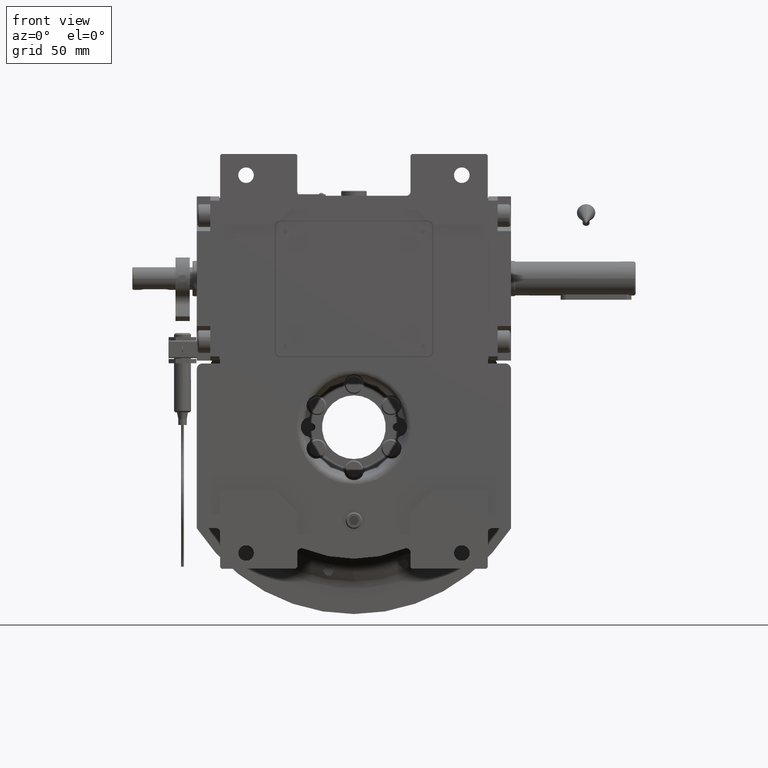
[diagram: clean part render]
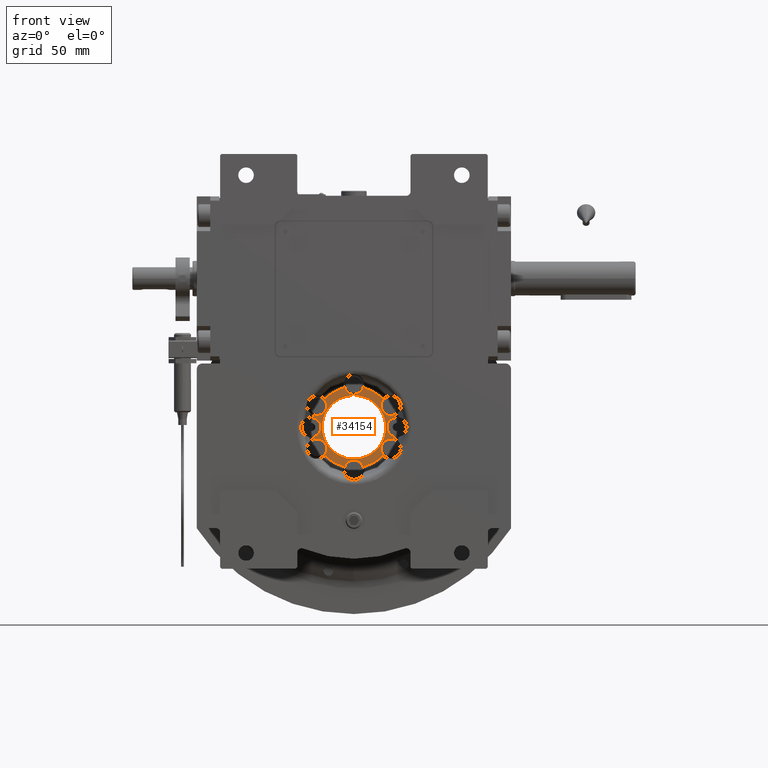
[diagram: same view with one face highlighted and labeled with its STEP entity id]
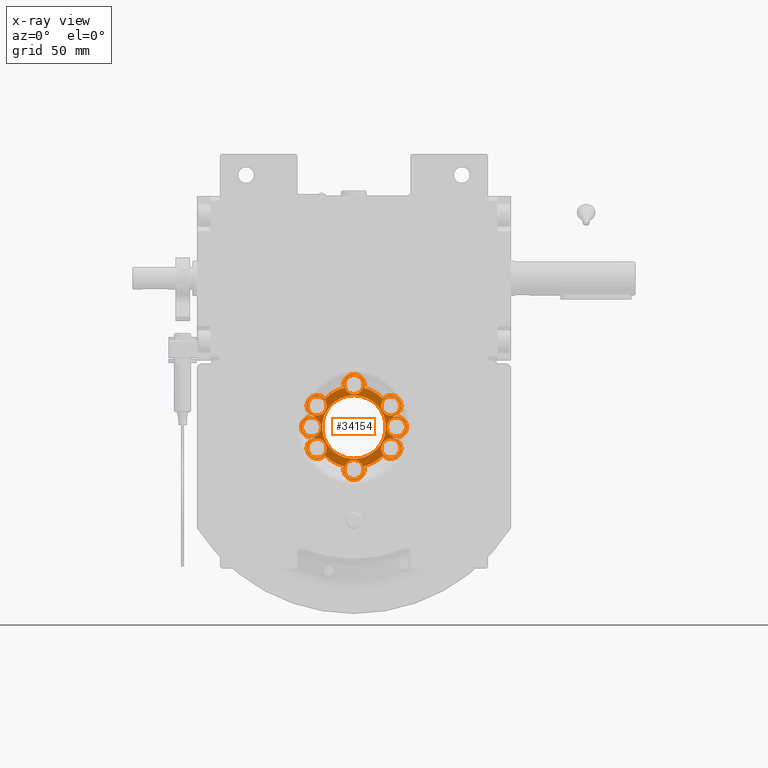
[diagram: x-ray of the same camera — body ghosted, the highlighted face saturated]
A machine part, front view. The second image highlights one B-rep face of the part: STEP entity #34154.
The next image is the same camera in x-ray: the body ghosted, the highlighted face saturated — about 1% of this face is hidden behind the body in this view.
In plain terms, the highlighted planar face has unit normal (0, -1, 0).
Its self-contained STEP definition (entity closure, byte-faithful):
#95 = ORIENTED_EDGE ( 'NONE', *, *, #12396, .T. ) ;
#175 = DIRECTION ( 'NONE',  ( -0.2495764111921504880, 0.000000000000000000, 0.9683551078898930964 ) ) ;
#772 = AXIS2_PLACEMENT_3D ( 'NONE', #43629, #66810, #59610 ) ;
#828 = EDGE_CURVE ( 'NONE', #2561, #31784, #61180, .T. ) ;
#923 = CIRCLE ( 'NONE', #57994, 7.500000000000002665 ) ;
#1090 = VERTEX_POINT ( 'NONE', #12328 ) ;
#1210 = EDGE_CURVE ( 'NONE', #31842, #29316, #15073, .T. ) ;
#1431 = CIRCLE ( 'NONE', #53616, 6.749999999999999112 ) ;
#1742 = AXIS2_PLACEMENT_3D ( 'NONE', #8483, #19494, #20617 ) ;
#1777 = DIRECTION ( 'NONE',  ( 0.000000000000000000, 1.836909530733564901E-16, 1.000000000000000000 ) ) ;
#2049 = ORIENTED_EDGE ( 'NONE', *, *, #50037, .T. ) ;
#2207 = CIRCLE ( 'NONE', #26444, 6.750000000000002665 ) ;
#2255 = ORIENTED_EDGE ( 'NONE', *, *, #47612, .T. ) ;
#2471 = VERTEX_POINT ( 'NONE', #60182 ) ;
#2561 = VERTEX_POINT ( 'NONE', #66244 ) ;
#2664 = EDGE_CURVE ( 'NONE', #71625, #13725, #18701, .T. ) ;
#2750 = CARTESIAN_POINT ( 'NONE',  ( -25.98076211353314946, 49.50000000000000000, -15.00000000000000000 ) ) ;
#3079 = ORIENTED_EDGE ( 'NONE', *, *, #42048, .T. ) ;
#3506 = CARTESIAN_POINT ( 'NONE',  ( -27.70874882886609925, 49.50000000000000000, 7.141440195841309624 ) ) ;
#3573 = ORIENTED_EDGE ( 'NONE', *, *, #32032, .T. ) ;
#3580 = ORIENTED_EDGE ( 'NONE', *, *, #11729, .F. ) ;
#3894 = DIRECTION ( 'NONE',  ( 1.000000000000000000, 0.000000000000000000, -4.921026175302210358E-15 ) ) ;
#3923 = DIRECTION ( 'NONE',  ( 0.000000000000000000, -1.000000000000000000, 0.000000000000000000 ) ) ;
#3986 = VERTEX_POINT ( 'NONE', #18100 ) ;
#4153 = CARTESIAN_POINT ( 'NONE',  ( -6.217248937900877889E-14, 49.50000000000000000, -8.881784197001248537E-14 ) ) ;
#4264 = CARTESIAN_POINT ( 'NONE',  ( -3.673940397442059967E-15, 49.50000000000000000, 22.50000000000000000 ) ) ;
#4913 = DIRECTION ( 'NONE',  ( -0.7138319177209940802, 0.000000000000000000, -0.7003170662226988474 ) ) ;
#5002 = EDGE_CURVE ( 'NONE', #72219, #10154, #5605, .T. ) ;
#5119 = DIRECTION ( 'NONE',  ( -0.2115251169690453847, 0.000000000000000000, 0.9773725619697085643 ) ) ;
#5138 = CARTESIAN_POINT ( 'NONE',  ( 5.684341886080798963E-14, 49.50000000000000000, -7.815970093361099520E-14 ) ) ;
#5605 = CIRCLE ( 'NONE', #772, 6.750000000000000000 ) ;
#5855 = DIRECTION ( 'NONE',  ( -0.7406669091431250518, 0.000000000000000000, -0.6718724058185229220 ) ) ;
#5887 = DIRECTION ( 'NONE',  ( 1.052655904829774050E-15, -1.000000000000000000, 1.063480603965749875E-15 ) ) ;
#6006 = PLANE ( 'NONE',  #20629 ) ;
#6007 = CARTESIAN_POINT ( 'NONE',  ( 6.217248937900879782E-15, 49.50000000000000000, 30.00000000000000000 ) ) ;
#6199 = CARTESIAN_POINT ( 'NONE',  ( -37.50000000000000000, 49.50000000000000000, 3.517587386798749700E-14 ) ) ;
#6269 = ORIENTED_EDGE ( 'NONE', *, *, #19301, .T. ) ;
#7253 = CARTESIAN_POINT ( 'NONE',  ( -6.549427666868720878E-11, 49.50000000000000000, -1.737010535407535240E-11 ) ) ;
#7298 = CARTESIAN_POINT ( 'NONE',  ( -36.75000000000000000, 49.50000000000000000, 1.367857847237842054E-14 ) ) ;
#7485 = DIRECTION ( 'NONE',  ( 0.9521920261121733509, 0.000000000000000000, -0.3055001561511784258 ) ) ;
#7563 = EDGE_CURVE ( 'NONE', #33799, #36087, #61667, .T. ) ;
#7821 = AXIS2_PLACEMENT_3D ( 'NONE', #4153, #67998, #4913 ) ;
#7988 = DIRECTION ( 'NONE',  ( 0.000000000000000000, -1.000000000000000000, 0.000000000000000000 ) ) ;
#8483 = CARTESIAN_POINT ( 'NONE',  ( 0.000000000000000000, 49.50000000000000000, 3.552713678800499352E-15 ) ) ;
#8504 = CIRCLE ( 'NONE', #70363, 22.50000000000000000 ) ;
#8998 = VERTEX_POINT ( 'NONE', #19040 ) ;
#9854 = ORIENTED_EDGE ( 'NONE', *, *, #56046, .F. ) ;
#9982 = CARTESIAN_POINT ( 'NONE',  ( 32.73076211353314591, 49.50000000000000000, 15.00000000000000000 ) ) ;
#10011 = ORIENTED_EDGE ( 'NONE', *, *, #17762, .T. ) ;
#10085 = VERTEX_POINT ( 'NONE', #7298 ) ;
#10154 = VERTEX_POINT ( 'NONE', #25134 ) ;
#10324 = VERTEX_POINT ( 'NONE', #32710 ) ;
#10391 = ORIENTED_EDGE ( 'NONE', *, *, #36341, .F. ) ;
#10488 = VERTEX_POINT ( 'NONE', #56647 ) ;
#10562 = CIRCLE ( 'NONE', #29957, 6.749999999999999112 ) ;
#10626 = CARTESIAN_POINT ( 'NONE',  ( -32.73076211353314591, 49.50000000000000000, 15.00000000000000000 ) ) ;
#10730 = CARTESIAN_POINT ( 'NONE',  ( -6.750000000000000000, 49.50000000000000000, 30.00000000000000000 ) ) ;
#10832 = CARTESIAN_POINT ( 'NONE',  ( -25.98076211353314946, 49.50000000000000000, -15.00000000000000000 ) ) ;
#10846 = EDGE_CURVE ( 'NONE', #34928, #63607, #19502, .T. ) ;
#11029 = EDGE_CURVE ( 'NONE', #13900, #8998, #19684, .T. ) ;
#11113 = CARTESIAN_POINT ( 'NONE',  ( 8.881784197001250351E-16, 49.50000000000000000, -30.00000000000000000 ) ) ;
#11633 = AXIS2_PLACEMENT_3D ( 'NONE', #28217, #51391, #45699 ) ;
#11720 = CIRCLE ( 'NONE', #40857, 7.499999999999997335 ) ;
#11729 = EDGE_CURVE ( 'NONE', #1090, #53224, #59942, .T. ) ;
#11902 = DIRECTION ( 'NONE',  ( -0.9634083289131539773, 0.000000000000000000, 0.2680380416671560018 ) ) ;
#12172 = ORIENTED_EDGE ( 'NONE', *, *, #66493, .T. ) ;
#12328 = CARTESIAN_POINT ( 'NONE',  ( 23.25000000000000000, 49.50000000000000000, 5.684972695077299758E-15 ) ) ;
#12396 = EDGE_CURVE ( 'NONE', #31784, #30095, #63636, .T. ) ;
#12438 = FACE_BOUND ( 'NONE', #16525, .T. ) ;
#12598 = DIRECTION ( 'NONE',  ( 0.000000000000000000, -1.000000000000000000, 0.000000000000000000 ) ) ;
#12618 = EDGE_CURVE ( 'NONE', #62939, #65410, #74594, .T. ) ;
#12813 = FACE_BOUND ( 'NONE', #29703, .T. ) ;
#12919 = DIRECTION ( 'NONE',  ( 1.052655904829776023E-15, -1.000000000000000000, 1.063480603965743958E-15 ) ) ;
#13033 = DIRECTION ( 'NONE',  ( 0.000000000000000000, -1.000000000000000000, 0.000000000000000000 ) ) ;
#13042 = VERTEX_POINT ( 'NONE', #62580 ) ;
#13234 = ORIENTED_EDGE ( 'NONE', *, *, #37246, .T. ) ;
#13589 = ORIENTED_EDGE ( 'NONE', *, *, #68331, .T. ) ;
#13609 = DIRECTION ( 'NONE',  ( 0.7406669091431267171, 0.000000000000000000, 0.6718724058185209236 ) ) ;
#13725 = VERTEX_POINT ( 'NONE', #9982 ) ;
#13819 = CARTESIAN_POINT ( 'NONE',  ( 6.750000000000000000, 49.50000000000000000, -30.00000000000000000 ) ) ;
#13900 = VERTEX_POINT ( 'NONE', #59959 ) ;
#14118 = CARTESIAN_POINT ( 'NONE',  ( 25.98076211353314946, 49.50000000000000000, -15.00000000000000000 ) ) ;
#14377 = AXIS2_PLACEMENT_3D ( 'NONE', #60120, #13033, #35830 ) ;
#14394 = CARTESIAN_POINT ( 'NONE',  ( 7.141440195841290084, 49.50000000000000000, -27.70874882886609925 ) ) ;
#14540 = DIRECTION ( 'NONE',  ( -0.2115251169690453847, 0.000000000000000000, 0.9773725619697085643 ) ) ;
#14675 = DIRECTION ( 'NONE',  ( 0.000000000000000000, -1.000000000000000000, 0.000000000000000000 ) ) ;
#14782 = ORIENTED_EDGE ( 'NONE', *, *, #828, .T. ) ;
#14814 = DIRECTION ( 'NONE',  ( -0.9521920261121707973, 0.000000000000000000, 0.3055001561511856423 ) ) ;
#15073 = CIRCLE ( 'NONE', #1742, 22.50000000000000000 ) ;
#15100 = CIRCLE ( 'NONE', #45488, 28.61424347655976064 ) ;
#15114 = EDGE_CURVE ( 'NONE', #10488, #10085, #74392, .T. ) ;
#15326 = CARTESIAN_POINT ( 'NONE',  ( -20.42576029495970147, 49.50000000000000000, 20.03904304363894795 ) ) ;
#15393 = CARTESIAN_POINT ( 'NONE',  ( -7.141440195841279426, 49.50000000000000000, -27.70874882886609925 ) ) ;
#15714 = CARTESIAN_POINT ( 'NONE',  ( -2.664535259100374514E-15, 49.50000000000000000, -30.00000000000000000 ) ) ;
#16375 = CIRCLE ( 'NONE', #62474, 7.500000000000000888 ) ;
#16492 = EDGE_CURVE ( 'NONE', #34989, #20798, #10562, .T. ) ;
#16525 = EDGE_LOOP ( 'NONE', ( #10391, #39692 ) ) ;
#16721 = ORIENTED_EDGE ( 'NONE', *, *, #11029, .T. ) ;
#17448 = CARTESIAN_POINT ( 'NONE',  ( 19.23076211353314946, 49.50000000000000000, 15.00000000000000000 ) ) ;
#17551 = DIRECTION ( 'NONE',  ( 1.000000000000000000, 0.000000000000000000, -2.055968564120660318E-15 ) ) ;
#17740 = EDGE_LOOP ( 'NONE', ( #41887, #45948 ) ) ;
#17750 = FACE_BOUND ( 'NONE', #52357, .T. ) ;
#17762 = EDGE_CURVE ( 'NONE', #2471, #3986, #69893, .T. ) ;
#17949 = CARTESIAN_POINT ( 'NONE',  ( 30.00000000000000000, 49.50000000000000000, 1.154631945610162013E-14 ) ) ;
#18029 = CARTESIAN_POINT ( 'NONE',  ( 6.750000000000000000, 49.50000000000000000, 30.00000000000000000 ) ) ;
#18100 = CARTESIAN_POINT ( 'NONE',  ( 27.70874882886609925, 49.50000000000000000, -7.141440195841269656 ) ) ;
#18378 = CARTESIAN_POINT ( 'NONE',  ( 1.421085471520200056E-14, 49.50000000000000000, -3.197442310920450205E-14 ) ) ;
#18476 = CIRCLE ( 'NONE', #60950, 7.500000000000002665 ) ;
#18501 = CARTESIAN_POINT ( 'NONE',  ( 25.98076211353314946, 49.50000000000000000, 15.00000000000000000 ) ) ;
#18701 = CIRCLE ( 'NONE', #55111, 6.749999999999999112 ) ;
#18958 = CARTESIAN_POINT ( 'NONE',  ( -27.56720049080099599, 49.50000000000000000, 7.669705785227219685 ) ) ;
#19005 = DIRECTION ( 'NONE',  ( 0.9683551078898888775, 0.000000000000000000, 0.2495764111921669470 ) ) ;
#19040 = CARTESIAN_POINT ( 'NONE',  ( -27.56720049080099599, 49.50000000000000000, -7.669705785227169947 ) ) ;
#19280 = DIRECTION ( 'NONE',  ( -1.000000000000000000, 0.000000000000000000, -2.569960705150824412E-16 ) ) ;
#19301 = EDGE_CURVE ( 'NONE', #63607, #43975, #23765, .T. ) ;
#19401 = EDGE_CURVE ( 'NONE', #53224, #1090, #22561, .T. ) ;
#19494 = DIRECTION ( 'NONE',  ( 0.000000000000000000, -1.000000000000000000, 0.000000000000000000 ) ) ;
#19502 = CIRCLE ( 'NONE', #32857, 7.499999999999997335 ) ;
#19684 = CIRCLE ( 'NONE', #51270, 28.61424347655751177 ) ;
#19725 = EDGE_CURVE ( 'NONE', #13042, #2471, #16375, .T. ) ;
#19772 = CARTESIAN_POINT ( 'NONE',  ( -1.776356839400249676E-15, 49.50000000000000000, 3.552713678800499352E-15 ) ) ;
#19773 = DIRECTION ( 'NONE',  ( -1.000000000000000000, 0.000000000000000000, -2.569960705150825398E-15 ) ) ;
#19834 = ORIENTED_EDGE ( 'NONE', *, *, #16492, .F. ) ;
#20074 = EDGE_CURVE ( 'NONE', #10324, #34928, #11720, .T. ) ;
#20288 = CARTESIAN_POINT ( 'NONE',  ( -2.664535259100374514E-15, 49.50000000000000000, -30.00000000000000000 ) ) ;
#20617 = DIRECTION ( 'NONE',  ( 1.224646799147351728E-16, 0.000000000000000000, -1.000000000000000000 ) ) ;
#20629 = AXIS2_PLACEMENT_3D ( 'NONE', #41318, #58419, #1777 ) ;
#20798 = VERTEX_POINT ( 'NONE', #29583 ) ;
#21282 = CIRCLE ( 'NONE', #24922, 6.749999999999999112 ) ;
#21721 = ORIENTED_EDGE ( 'NONE', *, *, #53554, .T. ) ;
#21815 = EDGE_CURVE ( 'NONE', #38033, #39357, #72244, .T. ) ;
#22132 = DIRECTION ( 'NONE',  ( 0.000000000000000000, -1.000000000000000000, 0.000000000000000000 ) ) ;
#22238 = CARTESIAN_POINT ( 'NONE',  ( 6.331291046990370121E-11, 49.50000000000000000, 1.678124306181415322E-11 ) ) ;
#22387 = AXIS2_PLACEMENT_3D ( 'NONE', #17949, #25051, #71428 ) ;
#22510 = DIRECTION ( 'NONE',  ( 0.000000000000000000, -1.000000000000000000, 0.000000000000000000 ) ) ;
#22561 = CIRCLE ( 'NONE', #22387, 6.749999999999999112 ) ;
#22894 = CARTESIAN_POINT ( 'NONE',  ( -20.42576029495970147, 49.50000000000000000, -20.03904304363890176 ) ) ;
#23453 = FACE_BOUND ( 'NONE', #17740, .T. ) ;
#23502 = ORIENTED_EDGE ( 'NONE', *, *, #67435, .F. ) ;
#23668 = DIRECTION ( 'NONE',  ( 0.000000000000000000, -1.000000000000000000, 0.000000000000000000 ) ) ;
#23765 = CIRCLE ( 'NONE', #29847, 7.499999999999997335 ) ;
#23845 = DIRECTION ( 'NONE',  ( -0.9521920261121707973, 0.000000000000000000, 0.3055001561511856423 ) ) ;
#23887 = AXIS2_PLACEMENT_3D ( 'NONE', #11113, #68876, #39622 ) ;
#24143 = EDGE_CURVE ( 'NONE', #13725, #71625, #67243, .T. ) ;
#24253 = ORIENTED_EDGE ( 'NONE', *, *, #30906, .F. ) ;
#24561 = VERTEX_POINT ( 'NONE', #69015 ) ;
#24719 = ORIENTED_EDGE ( 'NONE', *, *, #28264, .T. ) ;
#24922 = AXIS2_PLACEMENT_3D ( 'NONE', #61231, #38449, #62357 ) ;
#25051 = DIRECTION ( 'NONE',  ( 0.000000000000000000, -1.000000000000000000, 0.000000000000000000 ) ) ;
#25134 = CARTESIAN_POINT ( 'NONE',  ( -6.750000000000000000, 49.50000000000000000, -30.00000000000000000 ) ) ;
#25490 = DIRECTION ( 'NONE',  ( 0.000000000000000000, 1.000000000000000000, 0.000000000000000000 ) ) ;
#25955 = CARTESIAN_POINT ( 'NONE',  ( -25.98076211353314946, 49.50000000000000000, 15.00000000000000000 ) ) ;
#26226 = DIRECTION ( 'NONE',  ( 2.014138727769684682E-16, 0.000000000000000000, -1.000000000000000000 ) ) ;
#26294 = DIRECTION ( 'NONE',  ( 0.9521920261121733509, 0.000000000000000000, -0.3055001561511784258 ) ) ;
#26444 = AXIS2_PLACEMENT_3D ( 'NONE', #46149, #5887, #40458 ) ;
#27428 = VERTEX_POINT ( 'NONE', #10730 ) ;
#27731 = EDGE_LOOP ( 'NONE', ( #40243, #70778 ) ) ;
#28217 = CARTESIAN_POINT ( 'NONE',  ( -4.483524662646235404E-12, 49.50000000000000000, 1.083577672034151976E-12 ) ) ;
#28258 = AXIS2_PLACEMENT_3D ( 'NONE', #14118, #59369, #70769 ) ;
#28264 = EDGE_CURVE ( 'NONE', #30388, #67000, #35961, .T. ) ;
#28802 = FACE_BOUND ( 'NONE', #67979, .T. ) ;
#28815 = DIRECTION ( 'NONE',  ( 1.000000000000000000, 0.000000000000000000, -1.798972493605577187E-15 ) ) ;
#29033 = CARTESIAN_POINT ( 'NONE',  ( 25.98076211353314946, 49.50000000000000000, -15.00000000000000000 ) ) ;
#29195 = ORIENTED_EDGE ( 'NONE', *, *, #5002, .F. ) ;
#29225 = EDGE_CURVE ( 'NONE', #8998, #2561, #923, .T. ) ;
#29316 = VERTEX_POINT ( 'NONE', #4264 ) ;
#29456 = CIRCLE ( 'NONE', #71924, 7.500000000000000888 ) ;
#29583 = CARTESIAN_POINT ( 'NONE',  ( 32.73076211353314591, 49.50000000000000000, -15.00000000000000000 ) ) ;
#29615 = AXIS2_PLACEMENT_3D ( 'NONE', #18501, #47765, #28815 ) ;
#29703 = EDGE_LOOP ( 'NONE', ( #71633, #24253 ) ) ;
#29847 = AXIS2_PLACEMENT_3D ( 'NONE', #67763, #45711, #45321 ) ;
#29957 = AXIS2_PLACEMENT_3D ( 'NONE', #71950, #37360, #72691 ) ;
#29971 = CIRCLE ( 'NONE', #23887, 6.750000000000000000 ) ;
#30095 = VERTEX_POINT ( 'NONE', #15393 ) ;
#30231 = AXIS2_PLACEMENT_3D ( 'NONE', #68505, #74564, #17551 ) ;
#30289 = EDGE_CURVE ( 'NONE', #24561, #46947, #2207, .T. ) ;
#30333 = DIRECTION ( 'NONE',  ( 0.000000000000000000, -1.000000000000000000, 0.000000000000000000 ) ) ;
#30388 = VERTEX_POINT ( 'NONE', #36256 ) ;
#30403 = EDGE_CURVE ( 'NONE', #43975, #34932, #58092, .T. ) ;
#30531 = ORIENTED_EDGE ( 'NONE', *, *, #29225, .T. ) ;
#30906 = EDGE_CURVE ( 'NONE', #27428, #72023, #73867, .T. ) ;
#31207 = DIRECTION ( 'NONE',  ( 0.000000000000000000, -1.000000000000000000, 0.000000000000000000 ) ) ;
#31269 = CARTESIAN_POINT ( 'NONE',  ( 36.75000000000000000, 49.50000000000000000, 4.961317502722819266E-15 ) ) ;
#31784 = VERTEX_POINT ( 'NONE', #22894 ) ;
#31788 = CARTESIAN_POINT ( 'NONE',  ( -33.48076211353315301, 49.50000000000000000, 15.00000000000000000 ) ) ;
#31842 = VERTEX_POINT ( 'NONE', #35046 ) ;
#31920 = DIRECTION ( 'NONE',  ( 0.000000000000000000, -1.000000000000000000, 0.000000000000000000 ) ) ;
#32032 = EDGE_CURVE ( 'NONE', #31842, #29316, #8504, .T. ) ;
#32152 = EDGE_LOOP ( 'NONE', ( #64668, #3573 ) ) ;
#32297 = DIRECTION ( 'NONE',  ( 0.000000000000000000, -1.000000000000000000, 0.000000000000000000 ) ) ;
#32710 = CARTESIAN_POINT ( 'NONE',  ( 7.141440195841299854, 49.50000000000000000, 27.70874882886614898 ) ) ;
#32857 = AXIS2_PLACEMENT_3D ( 'NONE', #6007, #14675, #7485 ) ;
#33177 = AXIS2_PLACEMENT_3D ( 'NONE', #20288, #52718, #23845 ) ;
#33202 = EDGE_CURVE ( 'NONE', #39357, #13042, #61864, .T. ) ;
#33638 = DIRECTION ( 'NONE',  ( 0.2495764111921500439, 0.000000000000000000, -0.9683551078898933184 ) ) ;
#33799 = VERTEX_POINT ( 'NONE', #18958 ) ;
#34154 = ADVANCED_FACE ( 'NONE', ( #28802, #35992, #35603, #12438, #23453, #12813, #69833, #42061, #17750, #47016 ), #6006, .T. ) ;
#34233 = ORIENTED_EDGE ( 'NONE', *, *, #10846, .T. ) ;
#34293 = CARTESIAN_POINT ( 'NONE',  ( 25.98076211353314946, 49.50000000000000000, 15.00000000000000000 ) ) ;
#34928 = VERTEX_POINT ( 'NONE', #50278 ) ;
#34932 = VERTEX_POINT ( 'NONE', #15326 ) ;
#34989 = VERTEX_POINT ( 'NONE', #35073 ) ;
#34996 = VERTEX_POINT ( 'NONE', #6199 ) ;
#35046 = CARTESIAN_POINT ( 'NONE',  ( 2.755455298081544778E-15, 49.50000000000000000, -22.50000000000000000 ) ) ;
#35073 = CARTESIAN_POINT ( 'NONE',  ( 19.23076211353314946, 49.50000000000000000, -15.00000000000000000 ) ) ;
#35234 = EDGE_LOOP ( 'NONE', ( #30531, #14782, #95, #13589, #72955, #55792, #35989, #61736, #10011, #3079, #21721, #24719, #2049, #57378, #34233, #6269, #52253, #13234, #12172, #50174, #72527, #2255, #16721 ) ) ;
#35603 = FACE_OUTER_BOUND ( 'NONE', #35234, .T. ) ;
#35647 = AXIS2_PLACEMENT_3D ( 'NONE', #64076, #46973, #70173 ) ;
#35818 = ORIENTED_EDGE ( 'NONE', *, *, #19401, .F. ) ;
#35830 = DIRECTION ( 'NONE',  ( 0.7138319177209934141, 0.000000000000000000, 0.7003170662226995136 ) ) ;
#35961 = CIRCLE ( 'NONE', #65075, 7.500000000000000000 ) ;
#35989 = ORIENTED_EDGE ( 'NONE', *, *, #33202, .T. ) ;
#35992 = FACE_BOUND ( 'NONE', #48314, .T. ) ;
#36087 = VERTEX_POINT ( 'NONE', #3506 ) ;
#36098 = DIRECTION ( 'NONE',  ( 1.000000000000000000, 1.027984282060330356E-15, 5.139921410301651782E-16 ) ) ;
#36256 = CARTESIAN_POINT ( 'NONE',  ( 27.56720049080099599, 49.50000000000000000, 7.669705785227190376 ) ) ;
#36341 = EDGE_CURVE ( 'NONE', #46947, #24561, #1431, .T. ) ;
#36550 = DIRECTION ( 'NONE',  ( 0.3055001561511880293, 0.000000000000000000, 0.9521920261121701312 ) ) ;
#37246 = EDGE_CURVE ( 'NONE', #34932, #61039, #39948, .T. ) ;
#37258 = EDGE_CURVE ( 'NONE', #72023, #27428, #47264, .T. ) ;
#37360 = DIRECTION ( 'NONE',  ( 1.052655904829774050E-15, -1.000000000000000000, 1.063480603965749875E-15 ) ) ;
#37517 = CARTESIAN_POINT ( 'NONE',  ( -7.499999999999996447, 49.50000000000000000, 30.00000000000000000 ) ) ;
#37906 = CIRCLE ( 'NONE', #39117, 7.500000000000002665 ) ;
#38033 = VERTEX_POINT ( 'NONE', #42146 ) ;
#38449 = DIRECTION ( 'NONE',  ( 0.000000000000000000, -1.000000000000000000, 0.000000000000000000 ) ) ;
#38596 = DIRECTION ( 'NONE',  ( 0.000000000000000000, -1.000000000000000000, 0.000000000000000000 ) ) ;
#39117 = AXIS2_PLACEMENT_3D ( 'NONE', #53893, #66797, #13609 ) ;
#39357 = VERTEX_POINT ( 'NONE', #14394 ) ;
#39622 = DIRECTION ( 'NONE',  ( -1.000000000000000000, 0.000000000000000000, -1.541976423090495239E-15 ) ) ;
#39692 = ORIENTED_EDGE ( 'NONE', *, *, #30289, .F. ) ;
#39948 = CIRCLE ( 'NONE', #70330, 7.500000000000002665 ) ;
#40243 = ORIENTED_EDGE ( 'NONE', *, *, #24143, .F. ) ;
#40455 = AXIS2_PLACEMENT_3D ( 'NONE', #73436, #22510, #3894 ) ;
#40458 = DIRECTION ( 'NONE',  ( -1.000000000000000000, -1.027984282060329765E-15, -2.826956775665906557E-15 ) ) ;
#40857 = AXIS2_PLACEMENT_3D ( 'NONE', #62005, #62375, #26294 ) ;
#40862 = CARTESIAN_POINT ( 'NONE',  ( -19.23076211353314946, 49.50000000000000000, -15.00000000000000000 ) ) ;
#41219 = AXIS2_PLACEMENT_3D ( 'NONE', #5138, #38596, #33638 ) ;
#41318 = CARTESIAN_POINT ( 'NONE',  ( 0.000000000000000000, 49.50000000000000000, 2.754299314565139571E-15 ) ) ;
#41811 = DIRECTION ( 'NONE',  ( -0.3055001561511865305, 0.000000000000000000, -0.9521920261121705753 ) ) ;
#41887 = ORIENTED_EDGE ( 'NONE', *, *, #60501, .F. ) ;
#42048 = EDGE_CURVE ( 'NONE', #3986, #72635, #18476, .T. ) ;
#42061 = FACE_BOUND ( 'NONE', #51935, .T. ) ;
#42146 = CARTESIAN_POINT ( 'NONE',  ( 7.500000000000000000, 49.50000000000000000, -30.00000000000000000 ) ) ;
#43046 = DIRECTION ( 'NONE',  ( 0.000000000000000000, -1.000000000000000000, 0.000000000000000000 ) ) ;
#43081 = AXIS2_PLACEMENT_3D ( 'NONE', #58831, #30333, #19280 ) ;
#43629 = CARTESIAN_POINT ( 'NONE',  ( -4.440892098500625176E-16, 49.50000000000000000, -30.00000000000000000 ) ) ;
#43975 = VERTEX_POINT ( 'NONE', #54555 ) ;
#44430 = DIRECTION ( 'NONE',  ( 0.2115251169690436361, 0.000000000000000000, -0.9773725619697088973 ) ) ;
#44669 = ORIENTED_EDGE ( 'NONE', *, *, #15114, .F. ) ;
#45321 = DIRECTION ( 'NONE',  ( 0.9521920261121733509, 0.000000000000000000, -0.3055001561511784258 ) ) ;
#45488 = AXIS2_PLACEMENT_3D ( 'NONE', #7253, #7988, #19005 ) ;
#45699 = DIRECTION ( 'NONE',  ( 0.9634083289131452066, 0.000000000000000000, -0.2680380416671876431 ) ) ;
#45711 = DIRECTION ( 'NONE',  ( 0.000000000000000000, -1.000000000000000000, 0.000000000000000000 ) ) ;
#45948 = ORIENTED_EDGE ( 'NONE', *, *, #12618, .F. ) ;
#46149 = CARTESIAN_POINT ( 'NONE',  ( -25.98076211353314946, 49.50000000000000000, -15.00000000000000000 ) ) ;
#46947 = VERTEX_POINT ( 'NONE', #40862 ) ;
#46973 = DIRECTION ( 'NONE',  ( 0.000000000000000000, -1.000000000000000000, 0.000000000000000000 ) ) ;
#47016 = FACE_BOUND ( 'NONE', #32152, .T. ) ;
#47133 = AXIS2_PLACEMENT_3D ( 'NONE', #18378, #48019, #175 ) ;
#47144 = AXIS2_PLACEMENT_3D ( 'NONE', #63946, #23668, #11902 ) ;
#47264 = CIRCLE ( 'NONE', #30231, 6.750000000000000000 ) ;
#47612 = EDGE_CURVE ( 'NONE', #34996, #13900, #52814, .T. ) ;
#47765 = DIRECTION ( 'NONE',  ( 1.959088490513834807E-30, -1.000000000000000000, 1.063480603965741986E-15 ) ) ;
#48019 = DIRECTION ( 'NONE',  ( 0.000000000000000000, -1.000000000000000000, 0.000000000000000000 ) ) ;
#48314 = EDGE_LOOP ( 'NONE', ( #35818, #3580 ) ) ;
#49568 = DIRECTION ( 'NONE',  ( 0.000000000000000000, -1.000000000000000000, 0.000000000000000000 ) ) ;
#49935 = CARTESIAN_POINT ( 'NONE',  ( -30.00000000000000000, 49.50000000000000000, 3.730349362740524083E-14 ) ) ;
#50037 = EDGE_CURVE ( 'NONE', #67000, #10324, #52024, .T. ) ;
#50174 = ORIENTED_EDGE ( 'NONE', *, *, #7563, .T. ) ;
#50245 = CARTESIAN_POINT ( 'NONE',  ( 20.42576029495970147, 49.50000000000000000, 20.03904304363890176 ) ) ;
#50278 = CARTESIAN_POINT ( 'NONE',  ( 7.500000000000003553, 49.50000000000000000, 30.00000000000000000 ) ) ;
#50677 = DIRECTION ( 'NONE',  ( -0.9521920261121707973, 0.000000000000000000, 0.3055001561511856423 ) ) ;
#51270 = AXIS2_PLACEMENT_3D ( 'NONE', #22238, #51503, #74682 ) ;
#51391 = DIRECTION ( 'NONE',  ( 0.000000000000000000, -1.000000000000000000, 0.000000000000000000 ) ) ;
#51456 = CARTESIAN_POINT ( 'NONE',  ( -19.23076211353314946, 49.50000000000000000, 15.00000000000000000 ) ) ;
#51503 = DIRECTION ( 'NONE',  ( 0.000000000000000000, -1.000000000000000000, 0.000000000000000000 ) ) ;
#51935 = EDGE_LOOP ( 'NONE', ( #23502, #19834 ) ) ;
#52024 = CIRCLE ( 'NONE', #14377, 28.61424347649202105 ) ;
#52253 = ORIENTED_EDGE ( 'NONE', *, *, #30403, .T. ) ;
#52357 = EDGE_LOOP ( 'NONE', ( #29195, #64900 ) ) ;
#52718 = DIRECTION ( 'NONE',  ( 0.000000000000000000, -1.000000000000000000, 0.000000000000000000 ) ) ;
#52814 = CIRCLE ( 'NONE', #60079, 7.499999999999999112 ) ;
#52948 = DIRECTION ( 'NONE',  ( 0.000000000000000000, -1.000000000000000000, 0.000000000000000000 ) ) ;
#53190 = CARTESIAN_POINT ( 'NONE',  ( -25.98076211353314946, 49.50000000000000000, 15.00000000000000000 ) ) ;
#53224 = VERTEX_POINT ( 'NONE', #31269 ) ;
#53554 = EDGE_CURVE ( 'NONE', #72635, #30388, #15100, .T. ) ;
#53616 = AXIS2_PLACEMENT_3D ( 'NONE', #64652, #12598, #54000 ) ;
#53893 = CARTESIAN_POINT ( 'NONE',  ( -25.98076211353314946, 49.50000000000000000, 15.00000000000000000 ) ) ;
#54000 = DIRECTION ( 'NONE',  ( 1.000000000000000000, 0.000000000000000000, -2.312964634635743056E-15 ) ) ;
#54385 = CARTESIAN_POINT ( 'NONE',  ( 0.000000000000000000, 49.50000000000000000, 30.00000000000000000 ) ) ;
#54555 = CARTESIAN_POINT ( 'NONE',  ( -7.141440195841290084, 49.50000000000000000, 27.70874882886614898 ) ) ;
#54670 = VERTEX_POINT ( 'NONE', #74535 ) ;
#54721 = CARTESIAN_POINT ( 'NONE',  ( 25.98076211353314946, 49.50000000000000000, 15.00000000000000000 ) ) ;
#55111 = AXIS2_PLACEMENT_3D ( 'NONE', #34293, #22132, #63177 ) ;
#55792 = ORIENTED_EDGE ( 'NONE', *, *, #21815, .T. ) ;
#56046 = EDGE_CURVE ( 'NONE', #10085, #10488, #21282, .T. ) ;
#56614 = CARTESIAN_POINT ( 'NONE',  ( -2.664535259100374514E-15, 49.50000000000000000, -30.00000000000000000 ) ) ;
#56647 = CARTESIAN_POINT ( 'NONE',  ( -23.25000000000000000, 49.50000000000000000, 1.295492328002394005E-14 ) ) ;
#57177 = DIRECTION ( 'NONE',  ( 0.000000000000000000, -1.000000000000000000, 0.000000000000000000 ) ) ;
#57378 = ORIENTED_EDGE ( 'NONE', *, *, #20074, .T. ) ;
#57875 = EDGE_CURVE ( 'NONE', #10154, #72219, #29971, .T. ) ;
#57994 = AXIS2_PLACEMENT_3D ( 'NONE', #2750, #43046, #14540 ) ;
#58092 = CIRCLE ( 'NONE', #47133, 28.61424347649204947 ) ;
#58419 = DIRECTION ( 'NONE',  ( 0.000000000000000000, -1.000000000000000000, 1.836909530733564901E-16 ) ) ;
#58831 = CARTESIAN_POINT ( 'NONE',  ( -25.98076211353314946, 49.50000000000000000, 15.00000000000000000 ) ) ;
#59341 = AXIS2_PLACEMENT_3D ( 'NONE', #54385, #31207, #19773 ) ;
#59369 = DIRECTION ( 'NONE',  ( 0.000000000000000000, -1.000000000000000000, 0.000000000000000000 ) ) ;
#59610 = DIRECTION ( 'NONE',  ( 1.000000000000000000, 0.000000000000000000, -2.569960705150825398E-15 ) ) ;
#59942 = CIRCLE ( 'NONE', #35647, 6.749999999999999112 ) ;
#59959 = CARTESIAN_POINT ( 'NONE',  ( -27.70874882886609925, 49.50000000000000000, -7.141440195841250116 ) ) ;
#60079 = AXIS2_PLACEMENT_3D ( 'NONE', #65784, #65424, #36550 ) ;
#60120 = CARTESIAN_POINT ( 'NONE',  ( 1.243449787580175956E-14, 49.50000000000000000, 2.842170943040399481E-14 ) ) ;
#60182 = CARTESIAN_POINT ( 'NONE',  ( 27.56720049080099599, 49.50000000000000000, -7.669705785227179717 ) ) ;
#60501 = EDGE_CURVE ( 'NONE', #65410, #62939, #62828, .T. ) ;
#60950 = AXIS2_PLACEMENT_3D ( 'NONE', #64615, #64987, #41811 ) ;
#61039 = VERTEX_POINT ( 'NONE', #31788 ) ;
#61180 = CIRCLE ( 'NONE', #68528, 7.500000000000002665 ) ;
#61231 = CARTESIAN_POINT ( 'NONE',  ( -30.00000000000000000, 49.50000000000000000, 3.641531520770514715E-14 ) ) ;
#61667 = CIRCLE ( 'NONE', #47144, 28.61424347659174927 ) ;
#61736 = ORIENTED_EDGE ( 'NONE', *, *, #19725, .T. ) ;
#61864 = CIRCLE ( 'NONE', #41219, 28.61424347649189315 ) ;
#62005 = CARTESIAN_POINT ( 'NONE',  ( 6.217248937900879782E-15, 49.50000000000000000, 30.00000000000000000 ) ) ;
#62357 = DIRECTION ( 'NONE',  ( -1.000000000000000000, 0.000000000000000000, -4.986817169354070989E-15 ) ) ;
#62375 = DIRECTION ( 'NONE',  ( 0.000000000000000000, -1.000000000000000000, 0.000000000000000000 ) ) ;
#62474 = AXIS2_PLACEMENT_3D ( 'NONE', #29033, #52948, #5855 ) ;
#62580 = CARTESIAN_POINT ( 'NONE',  ( 20.42576029495975121, 49.50000000000000000, -20.03904304363890176 ) ) ;
#62828 = CIRCLE ( 'NONE', #71477, 6.749999999999999112 ) ;
#62939 = VERTEX_POINT ( 'NONE', #10626 ) ;
#63177 = DIRECTION ( 'NONE',  ( -1.000000000000000000, 0.000000000000000000, -1.541976423090495436E-15 ) ) ;
#63607 = VERTEX_POINT ( 'NONE', #37517 ) ;
#63636 = CIRCLE ( 'NONE', #7821, 28.61424347649190025 ) ;
#63946 = CARTESIAN_POINT ( 'NONE',  ( 9.638512210585760314E-11, 49.50000000000000000, -2.562750012202740053E-11 ) ) ;
#64036 = EDGE_CURVE ( 'NONE', #36087, #34996, #65518, .T. ) ;
#64076 = CARTESIAN_POINT ( 'NONE',  ( 30.00000000000000000, 49.50000000000000000, 1.199040866595170010E-14 ) ) ;
#64615 = CARTESIAN_POINT ( 'NONE',  ( 30.00000000000000000, 49.50000000000000000, 1.332267629550188006E-14 ) ) ;
#64652 = CARTESIAN_POINT ( 'NONE',  ( -25.98076211353314946, 49.50000000000000000, -15.00000000000000000 ) ) ;
#64654 = CIRCLE ( 'NONE', #28258, 6.750000000000002665 ) ;
#64668 = ORIENTED_EDGE ( 'NONE', *, *, #1210, .F. ) ;
#64900 = ORIENTED_EDGE ( 'NONE', *, *, #57875, .F. ) ;
#64987 = DIRECTION ( 'NONE',  ( 0.000000000000000000, -1.000000000000000000, 0.000000000000000000 ) ) ;
#65075 = AXIS2_PLACEMENT_3D ( 'NONE', #54721, #32297, #44430 ) ;
#65410 = VERTEX_POINT ( 'NONE', #51456 ) ;
#65424 = DIRECTION ( 'NONE',  ( 0.000000000000000000, -1.000000000000000000, 0.000000000000000000 ) ) ;
#65518 = CIRCLE ( 'NONE', #67973, 7.499999999999999112 ) ;
#65784 = CARTESIAN_POINT ( 'NONE',  ( -30.00000000000000000, 49.50000000000000000, 3.730349362740524083E-14 ) ) ;
#65934 = CIRCLE ( 'NONE', #33177, 7.500000000000000888 ) ;
#66244 = CARTESIAN_POINT ( 'NONE',  ( -33.48076211353315301, 49.50000000000000000, -15.00000000000000000 ) ) ;
#66493 = EDGE_CURVE ( 'NONE', #61039, #33799, #37906, .T. ) ;
#66797 = DIRECTION ( 'NONE',  ( 0.000000000000000000, -1.000000000000000000, 0.000000000000000000 ) ) ;
#66810 = DIRECTION ( 'NONE',  ( 0.000000000000000000, -1.000000000000000000, 0.000000000000000000 ) ) ;
#67000 = VERTEX_POINT ( 'NONE', #50245 ) ;
#67243 = CIRCLE ( 'NONE', #29615, 6.750000000000002665 ) ;
#67367 = DIRECTION ( 'NONE',  ( 0.000000000000000000, -1.000000000000000000, 0.000000000000000000 ) ) ;
#67435 = EDGE_CURVE ( 'NONE', #20798, #34989, #64654, .T. ) ;
#67763 = CARTESIAN_POINT ( 'NONE',  ( 6.217248937900879782E-15, 49.50000000000000000, 30.00000000000000000 ) ) ;
#67973 = AXIS2_PLACEMENT_3D ( 'NONE', #49935, #49568, #72011 ) ;
#67979 = EDGE_LOOP ( 'NONE', ( #44669, #9854 ) ) ;
#67998 = DIRECTION ( 'NONE',  ( 0.000000000000000000, -1.000000000000000000, 0.000000000000000000 ) ) ;
#68331 = EDGE_CURVE ( 'NONE', #30095, #54670, #65934, .T. ) ;
#68474 = EDGE_CURVE ( 'NONE', #54670, #38033, #29456, .T. ) ;
#68505 = CARTESIAN_POINT ( 'NONE',  ( 0.000000000000000000, 49.50000000000000000, 30.00000000000000000 ) ) ;
#68528 = AXIS2_PLACEMENT_3D ( 'NONE', #10832, #57177, #5119 ) ;
#68876 = DIRECTION ( 'NONE',  ( 0.000000000000000000, -1.000000000000000000, 0.000000000000000000 ) ) ;
#69015 = CARTESIAN_POINT ( 'NONE',  ( -32.73076211353314591, 49.50000000000000000, -15.00000000000000000 ) ) ;
#69833 = FACE_BOUND ( 'NONE', #27731, .T. ) ;
#69893 = CIRCLE ( 'NONE', #11633, 28.61424347649658984 ) ;
#70173 = DIRECTION ( 'NONE',  ( -1.000000000000000000, 0.000000000000000000, -1.368312496501710020E-15 ) ) ;
#70330 = AXIS2_PLACEMENT_3D ( 'NONE', #25955, #67367, #72335 ) ;
#70363 = AXIS2_PLACEMENT_3D ( 'NONE', #19772, #25490, #26226 ) ;
#70769 = DIRECTION ( 'NONE',  ( 1.000000000000000000, 0.000000000000000000, -2.312964634635741872E-15 ) ) ;
#70778 = ORIENTED_EDGE ( 'NONE', *, *, #2664, .F. ) ;
#71428 = DIRECTION ( 'NONE',  ( 1.000000000000000000, 0.000000000000000000, -1.302521502449849980E-15 ) ) ;
#71477 = AXIS2_PLACEMENT_3D ( 'NONE', #53190, #12919, #36098 ) ;
#71625 = VERTEX_POINT ( 'NONE', #17448 ) ;
#71633 = ORIENTED_EDGE ( 'NONE', *, *, #37258, .F. ) ;
#71924 = AXIS2_PLACEMENT_3D ( 'NONE', #15714, #3923, #50677 ) ;
#71950 = CARTESIAN_POINT ( 'NONE',  ( 25.98076211353314946, 49.50000000000000000, -15.00000000000000000 ) ) ;
#72011 = DIRECTION ( 'NONE',  ( 0.3055001561511880293, 0.000000000000000000, 0.9521920261121701312 ) ) ;
#72023 = VERTEX_POINT ( 'NONE', #18029 ) ;
#72219 = VERTEX_POINT ( 'NONE', #13819 ) ;
#72244 = CIRCLE ( 'NONE', #73481, 7.500000000000000888 ) ;
#72335 = DIRECTION ( 'NONE',  ( 0.7406669091431267171, 0.000000000000000000, 0.6718724058185209236 ) ) ;
#72527 = ORIENTED_EDGE ( 'NONE', *, *, #64036, .T. ) ;
#72622 = CARTESIAN_POINT ( 'NONE',  ( 27.70874882886609925, 49.50000000000000000, 7.141440195841290084 ) ) ;
#72635 = VERTEX_POINT ( 'NONE', #72622 ) ;
#72691 = DIRECTION ( 'NONE',  ( -1.000000000000000000, -1.027984282060330356E-15, -2.826956775665908135E-15 ) ) ;
#72955 = ORIENTED_EDGE ( 'NONE', *, *, #68474, .T. ) ;
#73436 = CARTESIAN_POINT ( 'NONE',  ( -30.00000000000000000, 49.50000000000000000, 3.597122599785509715E-14 ) ) ;
#73481 = AXIS2_PLACEMENT_3D ( 'NONE', #56614, #31920, #14814 ) ;
#73867 = CIRCLE ( 'NONE', #59341, 6.750000000000000000 ) ;
#74392 = CIRCLE ( 'NONE', #40455, 6.749999999999999112 ) ;
#74535 = CARTESIAN_POINT ( 'NONE',  ( -7.500000000000000000, 49.50000000000000000, -30.00000000000000000 ) ) ;
#74564 = DIRECTION ( 'NONE',  ( 0.000000000000000000, -1.000000000000000000, 0.000000000000000000 ) ) ;
#74594 = CIRCLE ( 'NONE', #43081, 6.750000000000002665 ) ;
#74682 = DIRECTION ( 'NONE',  ( -0.9683551078898896547, 0.000000000000000000, -0.2495764111921643935 ) ) ;